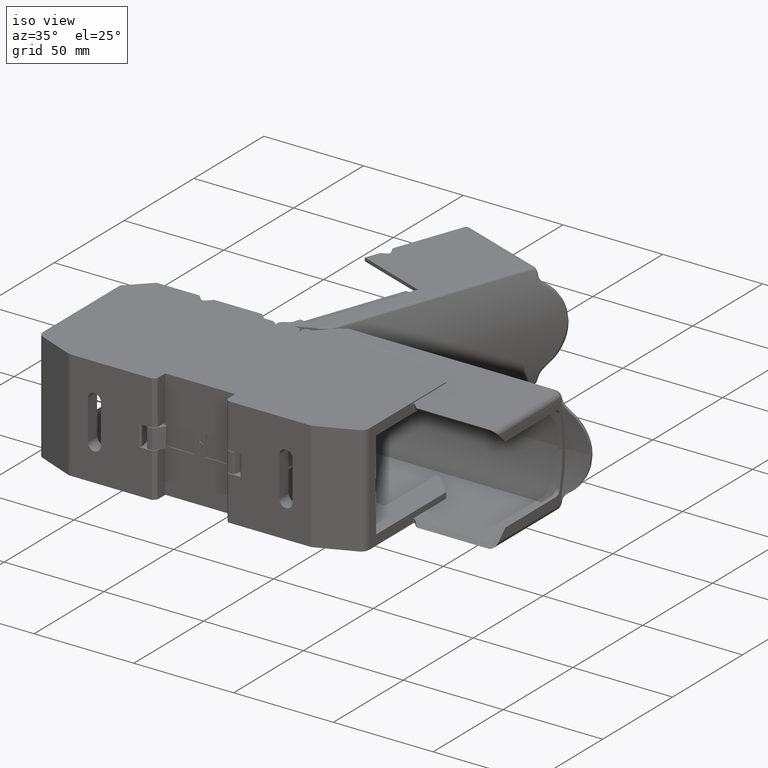
[diagram: clean part render]
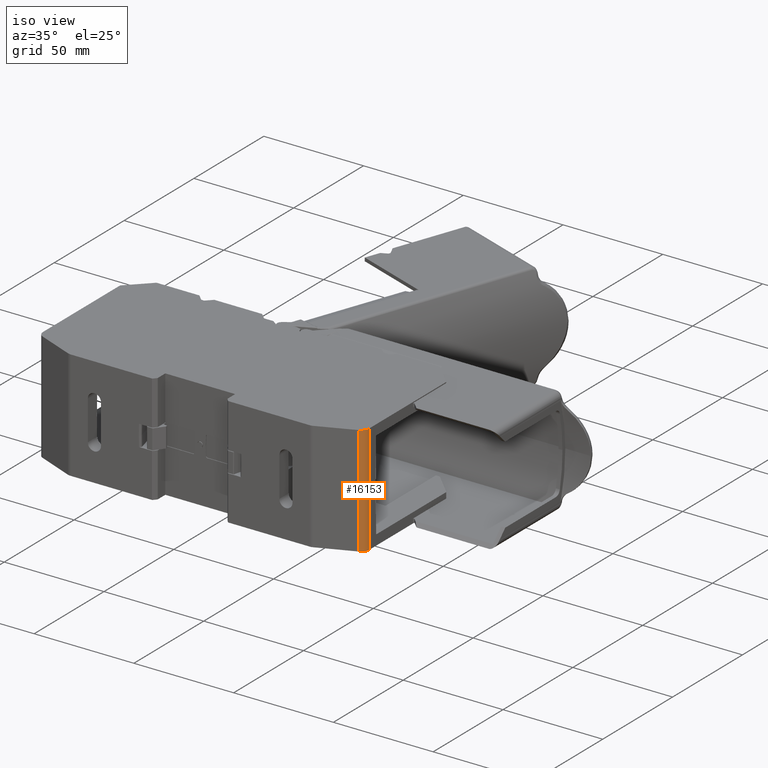
[diagram: same view with one face highlighted and labeled with its STEP entity id]
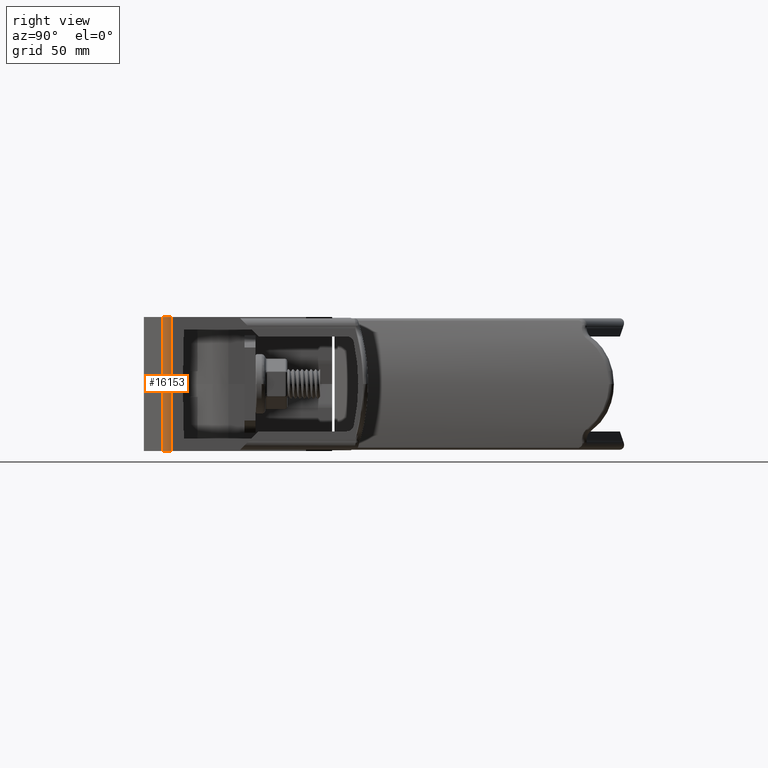
[diagram: same view with one face highlighted and labeled with its STEP entity id]
A machine part, iso view. The second image highlights one B-rep face of the part: STEP entity #16153.
A second angle (right view) of the same face is appended — the face is thin or edge-on in the first view.
In plain terms, the highlighted cylindrical surface (edge-blend (fillet) strip) has radius 4 mm, axis along (-0, 0, 1).
Its self-contained STEP definition (entity closure, byte-faithful):
#519 = CARTESIAN_POINT ( 'NONE',  ( 517.5234350960895400, -262.3061848724219100, 31.49999999999500500 ) ) ;
#562 = DIRECTION ( 'NONE',  ( -2.775557561562888800E-014, -1.000000000000000000, 3.469446951953611000E-015 ) ) ;
#579 = DIRECTION ( 'NONE',  ( 5.184916804330701900E-023, -2.892437796713807900E-015, -1.000000000000000000 ) ) ;
#2634 = VERTEX_POINT ( 'NONE', #39281 ) ;
#2650 = VERTEX_POINT ( 'NONE', #39386 ) ;
#2714 = VERTEX_POINT ( 'NONE', #39447 ) ;
#2751 = VERTEX_POINT ( 'NONE', #39399 ) ;
#3299 = AXIS2_PLACEMENT_3D ( 'NONE', #23662, #23680, #23626 ) ;
#7930 = LINE ( 'NONE', #7956, #23211 ) ;
#7956 = CARTESIAN_POINT ( 'NONE',  ( 519.0541687538077400, -266.0017030321838000, -23.40000000000392400 ) ) ;
#7968 = DIRECTION ( 'NONE',  ( 5.184916804330701900E-023, -2.892437796713807900E-015, -1.000000000000000000 ) ) ;
#8022 = CARTESIAN_POINT ( 'NONE',  ( 517.5234350960895400, -262.3061848724220800, -23.50000000000472900 ) ) ;
#8023 = DIRECTION ( 'NONE',  ( -5.184916804330701900E-023, 2.892437796713807900E-015, 1.000000000000000000 ) ) ;
#8024 = DIRECTION ( 'NONE',  ( 0.0000000000000000000, -1.000000000000000000, 2.602085213965208300E-015 ) ) ;
#8826 = EDGE_CURVE ( 'NONE', #2650, #2751, #7930, .T. ) ;
#8839 = EDGE_CURVE ( 'NONE', #2751, #2714, #23204, .T. ) ;
#8855 = EDGE_CURVE ( 'NONE', #2634, #2714, #21068, .T. ) ;
#16153 = ADVANCED_FACE ( 'NONE', ( #23649 ), #23639, .T. ) ;
#18927 = CIRCLE ( 'NONE', #18956, 4.000000000000003600 ) ;
#18956 = AXIS2_PLACEMENT_3D ( 'NONE', #519, #579, #562 ) ;
#21068 = LINE ( 'NONE', #21203, #23209 ) ;
#21203 = CARTESIAN_POINT ( 'NONE',  ( 521.5234350960895400, -262.3061848007188200, -23.40000000000410200 ) ) ;
#21214 = DIRECTION ( 'NONE',  ( -0.0000000000000000000, -0.0000000000000000000, -1.000000000000000000 ) ) ;
#23191 = AXIS2_PLACEMENT_3D ( 'NONE', #8022, #8023, #8024 ) ;
#23204 = CIRCLE ( 'NONE', #23191, 4.000000000000003600 ) ;
#23209 = VECTOR ( 'NONE', #21214, 1000.000000000000000 ) ;
#23211 = VECTOR ( 'NONE', #7968, 1000.000000000000000 ) ;
#23626 = DIRECTION ( 'NONE',  ( 0.0000000000000000000, -1.000000000000000000, 2.602085213965208300E-015 ) ) ;
#23639 = CYLINDRICAL_SURFACE ( 'NONE', #3299, 4.000000000000003600 ) ;
#23649 = FACE_OUTER_BOUND ( 'NONE', #38747, .T. ) ;
#23662 = CARTESIAN_POINT ( 'NONE',  ( 517.5234350960895400, -262.3061848724220800, -23.40000000000393500 ) ) ;
#23680 = DIRECTION ( 'NONE',  ( -5.184916804330701900E-023, 2.892437796713807900E-015, 1.000000000000000000 ) ) ;
#34182 = EDGE_CURVE ( 'NONE', #2634, #2650, #18927, .T. ) ;
#34988 = ORIENTED_EDGE ( 'NONE', *, *, #8855, .F. ) ;
#35019 = ORIENTED_EDGE ( 'NONE', *, *, #8839, .T. ) ;
#35047 = ORIENTED_EDGE ( 'NONE', *, *, #34182, .T. ) ;
#35071 = ORIENTED_EDGE ( 'NONE', *, *, #8826, .T. ) ;
#38747 = EDGE_LOOP ( 'NONE', ( #35047, #35071, #35019, #34988 ) ) ;
#39281 = CARTESIAN_POINT ( 'NONE',  ( 521.5234350960895400, -262.3061848007188200, 31.49999999999505800 ) ) ;
#39386 = CARTESIAN_POINT ( 'NONE',  ( 519.0541687538077400, -266.0017030321835700, 31.49999999999507200 ) ) ;
#39399 = CARTESIAN_POINT ( 'NONE',  ( 519.0541685043958800, -266.0017031354934100, -23.50000000000462200 ) ) ;
#39447 = CARTESIAN_POINT ( 'NONE',  ( 521.5234350960895400, -262.3061848365704200, -23.50000000000462900 ) ) ;